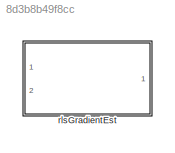
MODEL slx_8d3b8b49f8cc
KIND library
CONFIG AbsTol = auto
CONFIG EnableMultiTasking = off
CONFIG FixedStep = auto
CONFIG MaxStep = auto
CONFIG MinStep = auto
CONFIG RelTol = 1e-3
CONFIG SampleTimeConstraint = Unconstrained
CONFIG Solver = VariableStepAuto
CONFIG SolverName = VariableStepAuto
CONFIG StartTime = 0.0
CONFIG StopTime = 10.0
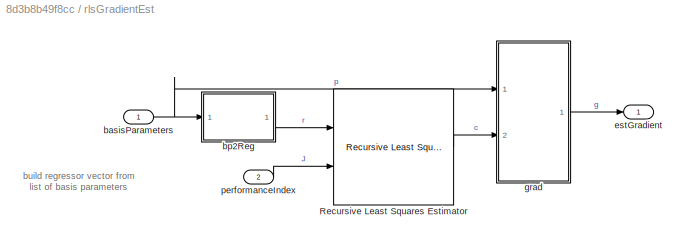
BLOCK [SubSystem] rlsGradientEst
  Ports = [2, 1]
  RequestExecContextInheritance = off
BLOCK [Reference] rlsGradientEst/Recursive Least Squares Estimator  REF=ctrlSharedLib/Recursive Least Squares Estimator
  Ports = [2, 1]
  SourceBlock = ctrlSharedLib/Recursive Least Squares Estimator
  SourceProductBaseCode = CT
  SourceProductName = Control System Toolbox
  SourceType = idEstimatorsRLS
BLOCK [Inport] rlsGradientEst/basisParameters
  IconDisplay = Port number
  PortDimensions = round(max([numParams,1]))
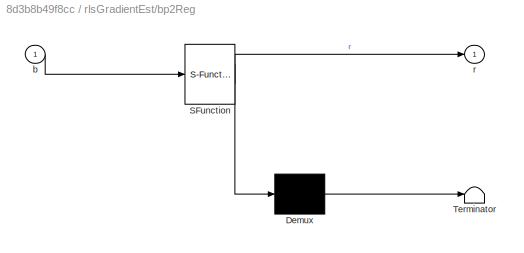
BLOCK [SubSystem] rlsGradientEst/bp2Reg
  ErrorFcn = Stateflow.Translate.translate
  PermitHierarchicalResolution = ExplicitOnly
  Ports = [1, 1]
  RequestExecContextInheritance = off
  SFBlockType = MATLAB Function
  TreatAsAtomicUnit = on
BLOCK [Demux] rlsGradientEst/bp2Reg/ Demux 
  Outputs = 1
  Ports = [1, 1]
BLOCK [S-Function] rlsGradientEst/bp2Reg/ SFunction 
  EnableBusSupport = off
  FunctionName = sf_sfun
  PortCounts = [1 2]
  Ports = [1, 2]
  SFcnIsStateOwnerBlock = off
  SFunctionDeploymentMode = off
  Tag = Stateflow S-Function rlsGradientEst_cl 1
BLOCK [Terminator] rlsGradientEst/bp2Reg/ Terminator 
BLOCK [Inport] rlsGradientEst/bp2Reg/b
  IconDisplay = Port number
BLOCK [Outport] rlsGradientEst/bp2Reg/r
  IconDisplay = Port number
BLOCK [Outport] rlsGradientEst/estGradient
  IconDisplay = Port number
  PortDimensions = round(max([numParams,1]))
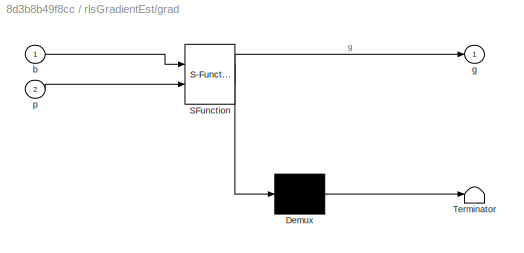
BLOCK [SubSystem] rlsGradientEst/grad
  ErrorFcn = Stateflow.Translate.translate
  PermitHierarchicalResolution = ExplicitOnly
  Ports = [2, 1]
  RequestExecContextInheritance = off
  SFBlockType = MATLAB Function
  TreatAsAtomicUnit = on
BLOCK [Demux] rlsGradientEst/grad/ Demux 
  Outputs = 1
  Ports = [1, 1]
BLOCK [S-Function] rlsGradientEst/grad/ SFunction 
  EnableBusSupport = off
  FunctionName = sf_sfun
  PortCounts = [2 2]
  Ports = [2, 2]
  SFcnIsStateOwnerBlock = off
  SFunctionDeploymentMode = off
  Tag = Stateflow S-Function rlsGradientEst_cl 3
BLOCK [Terminator] rlsGradientEst/grad/ Terminator 
BLOCK [Inport] rlsGradientEst/grad/b
  IconDisplay = Port number
BLOCK [Outport] rlsGradientEst/grad/g
  IconDisplay = Port number
BLOCK [Inport] rlsGradientEst/grad/p
  IconDisplay = Port number
  Port = 2
BLOCK [Inport] rlsGradientEst/performanceIndex
  IconDisplay = Port number
  Port = 2
ANNOTATION rlsGradientEst: build regressor vector from list of basis parameters
LINE rlsGradientEst/Recursive Least Squares Estimator:1 -> rlsGradientEst/grad:2
NET rlsGradientEst/basisParameters:1 -> rlsGradientEst/bp2Reg:1, rlsGradientEst/grad:1
LINE rlsGradientEst/bp2Reg:1 -> rlsGradientEst/Recursive Least Squares Estimator:1
LINE rlsGradientEst/grad:1 -> rlsGradientEst/estGradient:1
LINE rlsGradientEst/performanceIndex:1 -> rlsGradientEst/Recursive Least Squares Estimator:2
note: NET lines group one-source signal fan-out (src -> all destinations, sorted); 1:1 wires keep LINE
CHART rlsGradientEst/bp2Reg states=1 transitions=1
  STATE_LABEL 'eML_blk_kernel()'
  STATE_LABEL "SCRIPT:\nfunction r = fcn(b)\n% Preallocate column vector output\nr = ones(1+2*numel(b),1);\n% Build matrix of basis params and their squares\nb = [b(:) b(:).^2];\n% Reshape to column vector and store into output\nr(2:end) = reshape(b',[numel(b),1]);\n"
CHART rlsGradientEst/grad states=1 transitions=1
  STATE_LABEL 'eML_blk_kernel()'
  STATE_LABEL 'SCRIPT:\nfunction g = fcn(b,p)\np = p(:); % Reshape to column\ng = p(2:2:end)+2*p(3:2:end).*b(:);\n'
